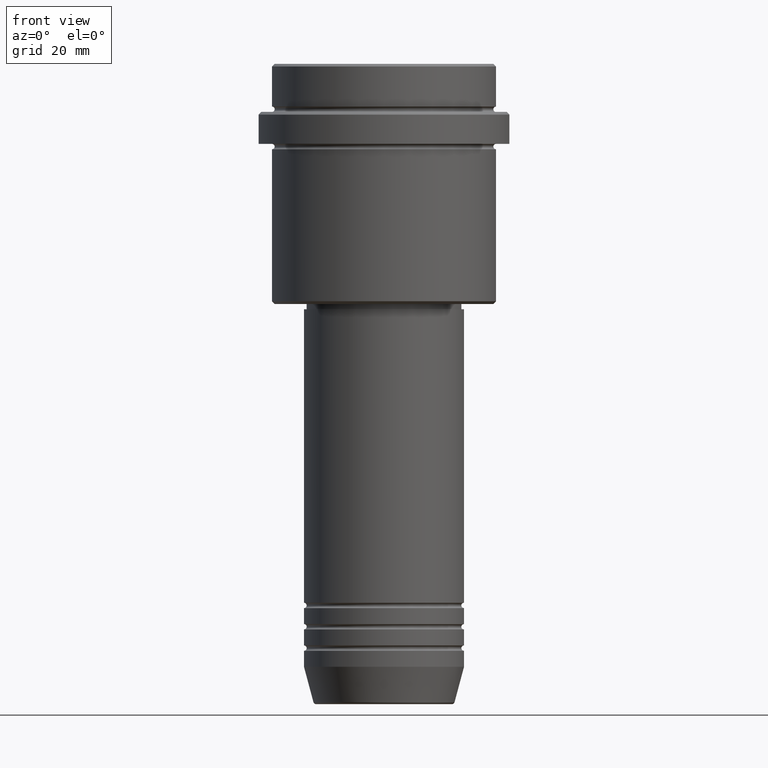
[diagram: clean part render]
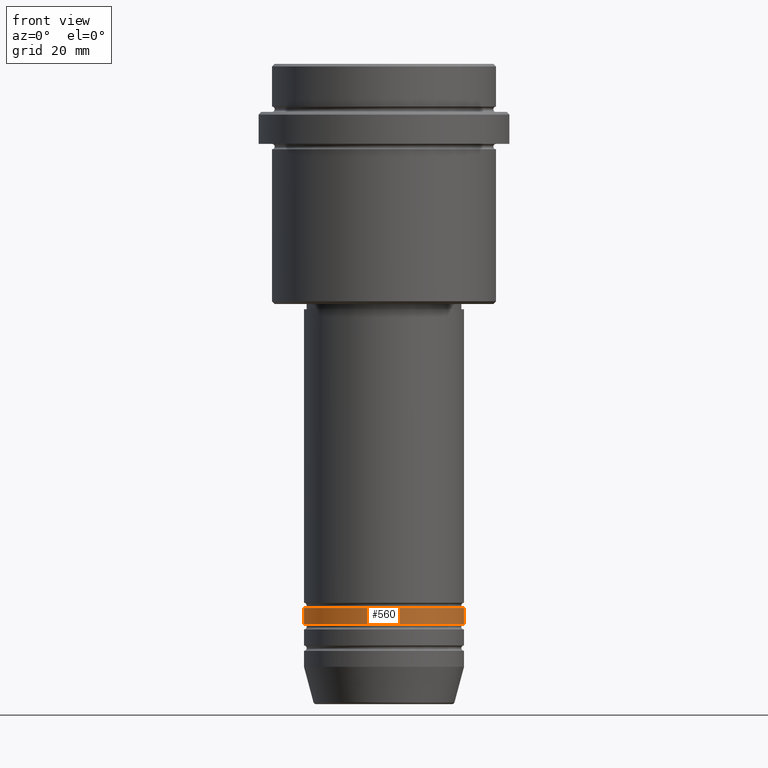
[diagram: same view with one face highlighted and labeled with its STEP entity id]
A machine part, front view. The second image highlights one B-rep face of the part: STEP entity #560.
In plain terms, the highlighted cylindrical surface (partial cylindrical patch) has radius 15 mm, axis along (-0, -0, 1).
Its self-contained STEP definition (entity closure, byte-faithful):
#97 = FACE_OUTER_BOUND ( 'NONE', #711, .T. ) ;
#121 = ORIENTED_EDGE ( 'NONE', *, *, #1244, .F. ) ;
#191 = DIRECTION ( 'NONE',  ( -0.000000000000000000, -0.000000000000000000, 1.000000000000000000 ) ) ;
#212 = ORIENTED_EDGE ( 'NONE', *, *, #1384, .F. ) ;
#223 = CARTESIAN_POINT ( 'NONE',  ( 15.00000000000000000, 0.000000000000000000, -101.9999999999998721 ) ) ;
#251 = VERTEX_POINT ( 'NONE', #223 ) ;
#284 = EDGE_CURVE ( 'NONE', #758, #1389, #1188, .T. ) ;
#361 = CARTESIAN_POINT ( 'NONE',  ( -15.00000000000000000, 1.836970198721029589E-15, -104.9999999999998721 ) ) ;
#389 = LINE ( 'NONE', #1277, #1099 ) ;
#424 = CIRCLE ( 'NONE', #973, 15.00000000000000000 ) ;
#432 = LINE ( 'NONE', #865, #767 ) ;
#535 = DIRECTION ( 'NONE',  ( 1.000000000000000000, 0.000000000000000000, 0.000000000000000000 ) ) ;
#560 = ADVANCED_FACE ( 'NONE', ( #97 ), #859, .T. ) ;
#602 = EDGE_CURVE ( 'NONE', #1389, #251, #432, .T. ) ;
#617 = DIRECTION ( 'NONE',  ( -0.000000000000000000, -0.000000000000000000, 1.000000000000000000 ) ) ;
#618 = DIRECTION ( 'NONE',  ( 1.000000000000000000, 0.000000000000000000, 0.000000000000000000 ) ) ;
#640 = VERTEX_POINT ( 'NONE', #1240 ) ;
#697 = AXIS2_PLACEMENT_3D ( 'NONE', #1078, #958, #755 ) ;
#711 = EDGE_LOOP ( 'NONE', ( #121, #774, #1164, #212 ) ) ;
#755 = DIRECTION ( 'NONE',  ( 1.000000000000000000, 0.000000000000000000, 0.000000000000000000 ) ) ;
#758 = VERTEX_POINT ( 'NONE', #361 ) ;
#766 = CARTESIAN_POINT ( 'NONE',  ( 15.00000000000000000, 0.000000000000000000, -104.9999999999998721 ) ) ;
#767 = VECTOR ( 'NONE', #1318, 1000.000000000000000 ) ;
#774 = ORIENTED_EDGE ( 'NONE', *, *, #284, .T. ) ;
#797 = CARTESIAN_POINT ( 'NONE',  ( 0.000000000000000000, 0.000000000000000000, -101.9999999999998721 ) ) ;
#859 = CYLINDRICAL_SURFACE ( 'NONE', #697, 15.00000000000000000 ) ;
#865 = CARTESIAN_POINT ( 'NONE',  ( 15.00000000000000000, 0.000000000000000000, 0.000000000000000000 ) ) ;
#958 = DIRECTION ( 'NONE',  ( -0.000000000000000000, -0.000000000000000000, 1.000000000000000000 ) ) ;
#961 = DIRECTION ( 'NONE',  ( -0.000000000000000000, -0.000000000000000000, 1.000000000000000000 ) ) ;
#973 = AXIS2_PLACEMENT_3D ( 'NONE', #797, #961, #535 ) ;
#1078 = CARTESIAN_POINT ( 'NONE',  ( 0.000000000000000000, 0.000000000000000000, 0.000000000000000000 ) ) ;
#1099 = VECTOR ( 'NONE', #617, 1000.000000000000000 ) ;
#1164 = ORIENTED_EDGE ( 'NONE', *, *, #602, .T. ) ;
#1179 = CARTESIAN_POINT ( 'NONE',  ( 0.000000000000000000, 0.000000000000000000, -104.9999999999998721 ) ) ;
#1188 = CIRCLE ( 'NONE', #1205, 15.00000000000000000 ) ;
#1205 = AXIS2_PLACEMENT_3D ( 'NONE', #1179, #191, #618 ) ;
#1240 = CARTESIAN_POINT ( 'NONE',  ( -15.00000000000000000, 1.836970198721029589E-15, -101.9999999999998721 ) ) ;
#1244 = EDGE_CURVE ( 'NONE', #758, #640, #389, .T. ) ;
#1277 = CARTESIAN_POINT ( 'NONE',  ( -15.00000000000000000, 1.836970198721029589E-15, 0.000000000000000000 ) ) ;
#1318 = DIRECTION ( 'NONE',  ( -0.000000000000000000, -0.000000000000000000, 1.000000000000000000 ) ) ;
#1384 = EDGE_CURVE ( 'NONE', #640, #251, #424, .T. ) ;
#1389 = VERTEX_POINT ( 'NONE', #766 ) ;